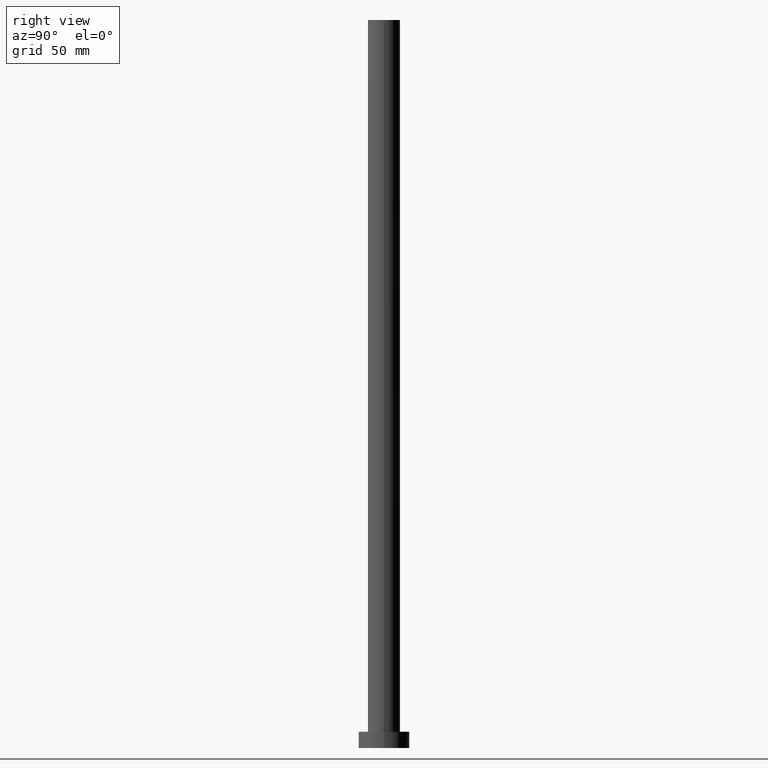
[diagram: clean part render]
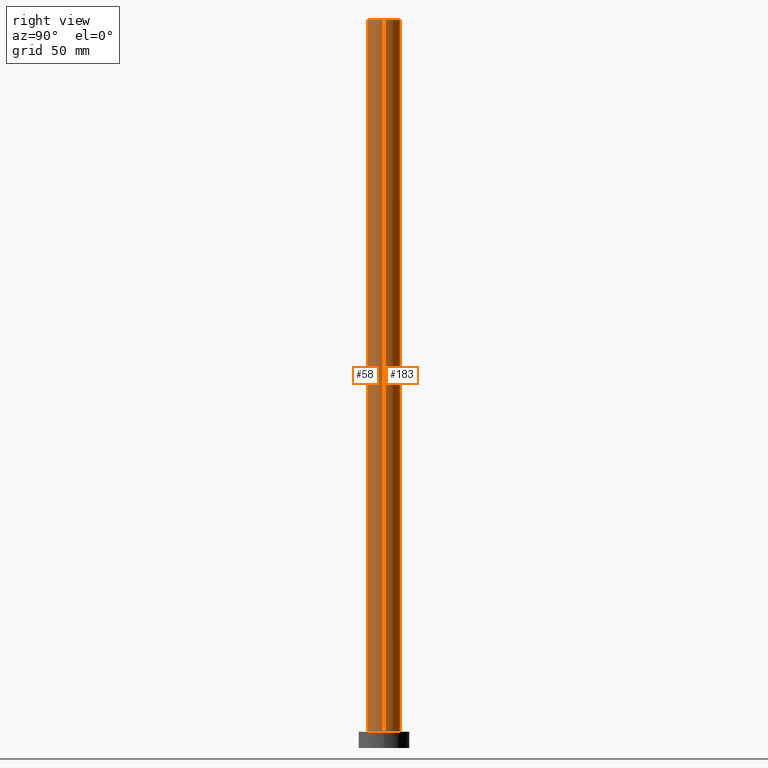
[diagram: same view with one multi-face feature highlighted, each face labeled with its STEP entity id]
A machine part, right view. The highlighted faces form ONE feature: a constant-radius fillet chain: 2 tangent blend faces with common blend radius 7 mm. The faces share edges in the B-rep.
Their STEP definitions:
[1] entity #183 (Cylinder):
#4 = AXIS2_PLACEMENT_3D ( 'NONE', #174, #243, #244 ) ;
#5 = EDGE_CURVE ( 'NONE', #62, #231, #134, .T. ) ;
#35 = EDGE_LOOP ( 'NONE', ( #57, #157, #161, #113 ) ) ;
#50 = DIRECTION ( 'NONE',  ( 1.000000000000000000, 0.000000000000000000, 0.000000000000000000 ) ) ;
#57 = ORIENTED_EDGE ( 'NONE', *, *, #60, .F. ) ;
#60 = EDGE_CURVE ( 'NONE', #191, #62, #238, .T. ) ;
#62 = VERTEX_POINT ( 'NONE', #70 ) ;
#70 = CARTESIAN_POINT ( 'NONE',  ( -7.000000000000000888, 0.000000000000000000, 315.0000000000000000 ) ) ;
#73 = DIRECTION ( 'NONE',  ( -0.000000000000000000, -0.000000000000000000, -1.000000000000000000 ) ) ;
#76 = VERTEX_POINT ( 'NONE', #102 ) ;
#86 = DIRECTION ( 'NONE',  ( -0.000000000000000000, -0.000000000000000000, -1.000000000000000000 ) ) ;
#93 = DIRECTION ( 'NONE',  ( -0.000000000000000000, -0.000000000000000000, -1.000000000000000000 ) ) ;
#101 = CYLINDRICAL_SURFACE ( 'NONE', #106, 7.000000000000000888 ) ;
#102 = CARTESIAN_POINT ( 'NONE',  ( 7.000000000000000888, 8.572527594031474176E-16, 7.000000000000000000 ) ) ;
#106 = AXIS2_PLACEMENT_3D ( 'NONE', #146, #86, #129 ) ;
#113 = ORIENTED_EDGE ( 'NONE', *, *, #5, .F. ) ;
#119 = EDGE_CURVE ( 'NONE', #191, #76, #227, .T. ) ;
#127 = CARTESIAN_POINT ( 'NONE',  ( -7.000000000000000888, 0.000000000000000000, 7.000000000000000000 ) ) ;
#129 = DIRECTION ( 'NONE',  ( -1.000000000000000000, 0.000000000000000000, 0.000000000000000000 ) ) ;
#134 = LINE ( 'NONE', #180, #215 ) ;
#146 = CARTESIAN_POINT ( 'NONE',  ( 0.000000000000000000, 0.000000000000000000, 315.0000000000000000 ) ) ;
#157 = ORIENTED_EDGE ( 'NONE', *, *, #119, .T. ) ;
#161 = ORIENTED_EDGE ( 'NONE', *, *, #216, .T. ) ;
#170 = CARTESIAN_POINT ( 'NONE',  ( 0.000000000000000000, 0.000000000000000000, 7.000000000000000000 ) ) ;
#174 = CARTESIAN_POINT ( 'NONE',  ( 0.000000000000000000, 0.000000000000000000, 315.0000000000000000 ) ) ;
#175 = CIRCLE ( 'NONE', #254, 7.000000000000000888 ) ;
#180 = CARTESIAN_POINT ( 'NONE',  ( -7.000000000000000888, 0.000000000000000000, 315.0000000000000000 ) ) ;
#183 = ADVANCED_FACE ( 'NONE', ( #208 ), #101, .T. ) ;
#191 = VERTEX_POINT ( 'NONE', #247 ) ;
#194 = CARTESIAN_POINT ( 'NONE',  ( 7.000000000000000888, 8.572527594031474176E-16, 315.0000000000000000 ) ) ;
#201 = VECTOR ( 'NONE', #73, 1000.000000000000000 ) ;
#208 = FACE_OUTER_BOUND ( 'NONE', #35, .T. ) ;
#215 = VECTOR ( 'NONE', #93, 1000.000000000000000 ) ;
#216 = EDGE_CURVE ( 'NONE', #76, #231, #175, .T. ) ;
#227 = LINE ( 'NONE', #194, #201 ) ;
#230 = DIRECTION ( 'NONE',  ( 0.000000000000000000, 0.000000000000000000, 1.000000000000000000 ) ) ;
#231 = VERTEX_POINT ( 'NONE', #127 ) ;
#238 = CIRCLE ( 'NONE', #4, 7.000000000000000888 ) ;
#243 = DIRECTION ( 'NONE',  ( 0.000000000000000000, 0.000000000000000000, 1.000000000000000000 ) ) ;
#244 = DIRECTION ( 'NONE',  ( 1.000000000000000000, 0.000000000000000000, 0.000000000000000000 ) ) ;
#247 = CARTESIAN_POINT ( 'NONE',  ( 7.000000000000000888, 8.572527594031474176E-16, 315.0000000000000000 ) ) ;
#254 = AXIS2_PLACEMENT_3D ( 'NONE', #170, #230, #50 ) ;
[2] entity #58 (Cylinder):
#1 = EDGE_CURVE ( 'NONE', #62, #191, #209, .T. ) ;
#5 = EDGE_CURVE ( 'NONE', #62, #231, #134, .T. ) ;
#7 = EDGE_CURVE ( 'NONE', #231, #76, #103, .T. ) ;
#10 = DIRECTION ( 'NONE',  ( 0.000000000000000000, 0.000000000000000000, 1.000000000000000000 ) ) ;
#12 = DIRECTION ( 'NONE',  ( 1.000000000000000000, 0.000000000000000000, 0.000000000000000000 ) ) ;
#14 = ORIENTED_EDGE ( 'NONE', *, *, #1, .F. ) ;
#20 = DIRECTION ( 'NONE',  ( 0.000000000000000000, 0.000000000000000000, 1.000000000000000000 ) ) ;
#46 = DIRECTION ( 'NONE',  ( 1.000000000000000000, 0.000000000000000000, 0.000000000000000000 ) ) ;
#53 = DIRECTION ( 'NONE',  ( -0.000000000000000000, -0.000000000000000000, -1.000000000000000000 ) ) ;
#58 = ADVANCED_FACE ( 'NONE', ( #188 ), #203, .T. ) ;
#62 = VERTEX_POINT ( 'NONE', #70 ) ;
#70 = CARTESIAN_POINT ( 'NONE',  ( -7.000000000000000888, 0.000000000000000000, 315.0000000000000000 ) ) ;
#71 = EDGE_LOOP ( 'NONE', ( #110, #14, #177, #150 ) ) ;
#73 = DIRECTION ( 'NONE',  ( -0.000000000000000000, -0.000000000000000000, -1.000000000000000000 ) ) ;
#76 = VERTEX_POINT ( 'NONE', #102 ) ;
#84 = CARTESIAN_POINT ( 'NONE',  ( 0.000000000000000000, 0.000000000000000000, 7.000000000000000000 ) ) ;
#89 = DIRECTION ( 'NONE',  ( -1.000000000000000000, 0.000000000000000000, 0.000000000000000000 ) ) ;
#93 = DIRECTION ( 'NONE',  ( -0.000000000000000000, -0.000000000000000000, -1.000000000000000000 ) ) ;
#102 = CARTESIAN_POINT ( 'NONE',  ( 7.000000000000000888, 8.572527594031474176E-16, 7.000000000000000000 ) ) ;
#103 = CIRCLE ( 'NONE', #124, 7.000000000000000888 ) ;
#110 = ORIENTED_EDGE ( 'NONE', *, *, #119, .F. ) ;
#117 = CARTESIAN_POINT ( 'NONE',  ( 0.000000000000000000, 0.000000000000000000, 315.0000000000000000 ) ) ;
#119 = EDGE_CURVE ( 'NONE', #191, #76, #227, .T. ) ;
#121 = AXIS2_PLACEMENT_3D ( 'NONE', #250, #53, #89 ) ;
#124 = AXIS2_PLACEMENT_3D ( 'NONE', #84, #20, #46 ) ;
#127 = CARTESIAN_POINT ( 'NONE',  ( -7.000000000000000888, 0.000000000000000000, 7.000000000000000000 ) ) ;
#134 = LINE ( 'NONE', #180, #215 ) ;
#150 = ORIENTED_EDGE ( 'NONE', *, *, #7, .T. ) ;
#177 = ORIENTED_EDGE ( 'NONE', *, *, #5, .T. ) ;
#180 = CARTESIAN_POINT ( 'NONE',  ( -7.000000000000000888, 0.000000000000000000, 315.0000000000000000 ) ) ;
#186 = AXIS2_PLACEMENT_3D ( 'NONE', #117, #10, #12 ) ;
#188 = FACE_OUTER_BOUND ( 'NONE', #71, .T. ) ;
#191 = VERTEX_POINT ( 'NONE', #247 ) ;
#194 = CARTESIAN_POINT ( 'NONE',  ( 7.000000000000000888, 8.572527594031474176E-16, 315.0000000000000000 ) ) ;
#201 = VECTOR ( 'NONE', #73, 1000.000000000000000 ) ;
#203 = CYLINDRICAL_SURFACE ( 'NONE', #121, 7.000000000000000888 ) ;
#209 = CIRCLE ( 'NONE', #186, 7.000000000000000888 ) ;
#215 = VECTOR ( 'NONE', #93, 1000.000000000000000 ) ;
#227 = LINE ( 'NONE', #194, #201 ) ;
#231 = VERTEX_POINT ( 'NONE', #127 ) ;
#247 = CARTESIAN_POINT ( 'NONE',  ( 7.000000000000000888, 8.572527594031474176E-16, 315.0000000000000000 ) ) ;
#250 = CARTESIAN_POINT ( 'NONE',  ( 0.000000000000000000, 0.000000000000000000, 315.0000000000000000 ) ) ;